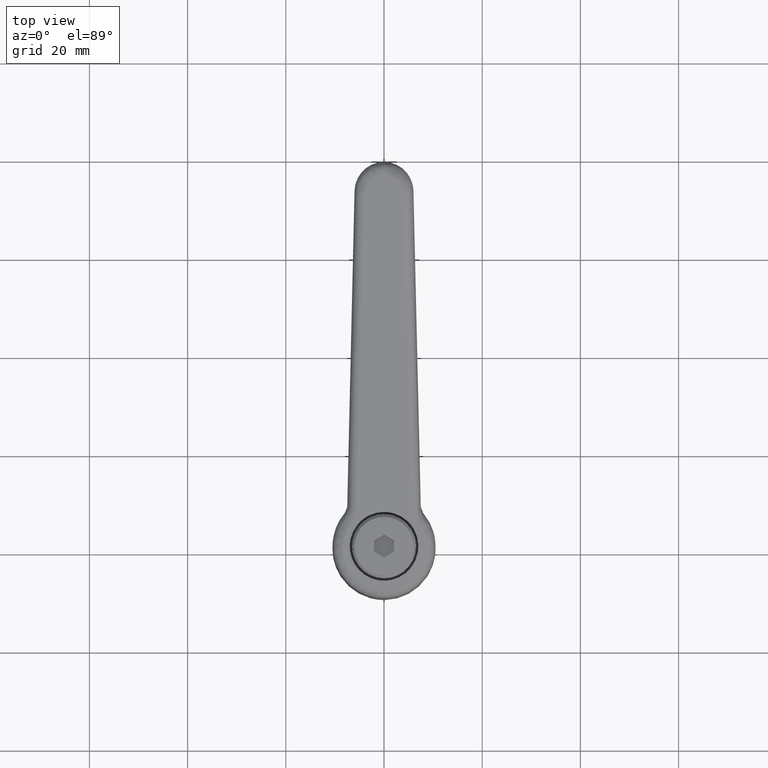
[diagram: clean part render]
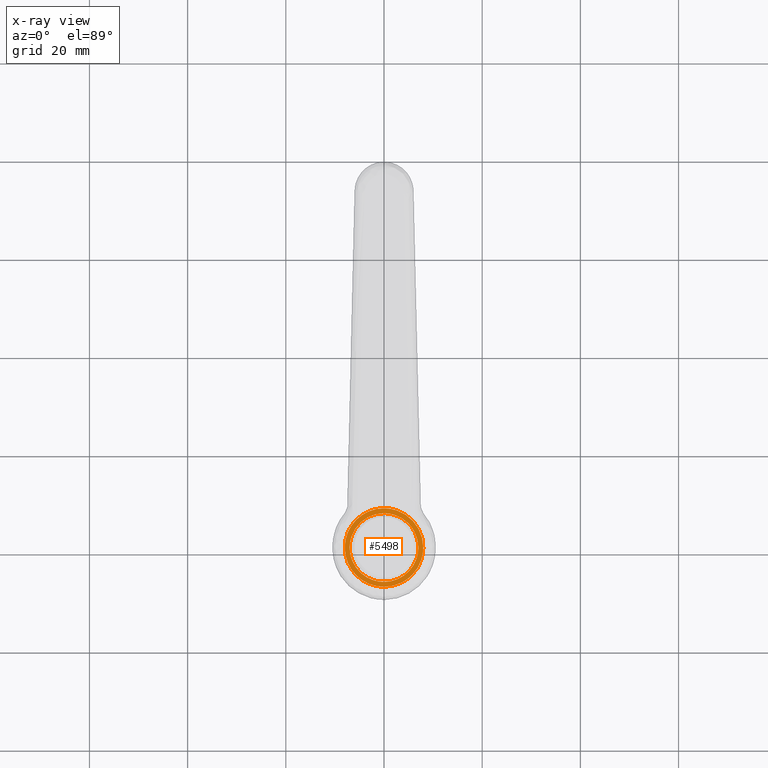
[diagram: x-ray — body ghosted, one internal face saturated and labeled with its STEP entity id]
A machine part, top view, then the same camera in x-ray: the body is ghosted and one INTERNAL B-rep face — a face not visible from any outside direction — is saturated and labeled: STEP entity #5498.
In plain terms, the highlighted face is a freeform B-spline surface patch.
Its self-contained STEP definition (entity closure, byte-faithful):
#1746=CARTESIAN_POINT('',(-8.0,0.0,12.000000000000220));
#1747=VERTEX_POINT('',#1746);
#1748=CARTESIAN_POINT('',(-5.579455721552899,-5.733207539593251,11.999999999997680));
#1749=VERTEX_POINT('',#1748);
#1750=CARTESIAN_POINT('',(-8.0,0.0,12.000000000000220));
#1751=CARTESIAN_POINT('',(-8.000146582785163,-0.632548017471937,11.999999999999980));
#1752=CARTESIAN_POINT('',(-7.861075222991566,-1.797664162633474,11.999999999999369));
#1753=CARTESIAN_POINT('',(-7.340992504563000,-3.281672746168522,11.999999999998810));
#1754=CARTESIAN_POINT('',(-6.605152552039799,-4.591446488769863,11.999999999998190));
#1755=CARTESIAN_POINT('',(-5.985107553581262,-5.338550741395644,11.999999999997859));
#1756=CARTESIAN_POINT('',(-5.579455721552899,-5.733207539593251,11.999999999997680));
#1757=B_SPLINE_CURVE_WITH_KNOTS('',3,(#1750,#1751,#1752,#1753,#1754,#1755,#1756),.UNSPECIFIED.,.F.,.U.,(4,1,1,1,4),(0.000000025283748,1.897614300903676,3.495578272960236,4.694086862250728,6.391948988996881),.UNSPECIFIED.);
#1758=EDGE_CURVE('',#1747,#1749,#1757,.T.);
#1823=CARTESIAN_POINT('',(5.404721835656156,-5.898218970217174,12.000000000002540));
#1824=VERTEX_POINT('',#1823);
#1830=CARTESIAN_POINT('',(8.0,0.0,12.000000000000220));
#1831=VERTEX_POINT('',#1830);
#1832=CARTESIAN_POINT('',(5.404721835656156,-5.898218970217174,12.000000000002540));
#1833=CARTESIAN_POINT('',(5.914259990223449,-5.431632111475515,12.000000000002350));
#1834=CARTESIAN_POINT('',(6.564324492623152,-4.658463254273058,12.000000000002061));
#1835=CARTESIAN_POINT('',(7.292831385902836,-3.361125749474158,12.000000000001560));
#1836=CARTESIAN_POINT('',(7.834373657264662,-1.934288856877671,12.000000000000940));
#1837=CARTESIAN_POINT('',(8.000263067084253,-0.725433264193038,12.000000000000471));
#1838=CARTESIAN_POINT('',(8.0,0.0,12.000000000000220));
#1839=B_SPLINE_CURVE_WITH_KNOTS('',3,(#1832,#1833,#1834,#1835,#1836,#1837,#1838),.UNSPECIFIED.,.F.,.U.,(4,1,1,1,4),(0.000000024971222,2.072597991270301,3.005278881465388,4.456068841522688,6.632297714726174),.UNSPECIFIED.);
#1840=EDGE_CURVE('',#1824,#1831,#1839,.T.);
#1842=CARTESIAN_POINT('',(-0.000001290271965,7.999999999999895,12.000000000000220));
#1843=VERTEX_POINT('',#1842);
#1844=CARTESIAN_POINT('',(8.0,0.0,12.000000000000220));
#1845=CARTESIAN_POINT('',(8.000037843075400,0.523587238359594,12.000000000000220));
#1846=CARTESIAN_POINT('',(7.884045448115455,1.701701000677621,12.000000000000229));
#1847=CARTESIAN_POINT('',(7.346269233846166,3.329718888560168,12.000000000000220));
#1848=CARTESIAN_POINT('',(6.517766009167777,4.711678988182587,12.000000000000229));
#1849=CARTESIAN_POINT('',(5.567590183017757,5.799657356347963,12.000000000000240));
#1850=CARTESIAN_POINT('',(4.622931845859096,6.565241710587349,12.000000000000210));
#1851=CARTESIAN_POINT('',(3.550745592449727,7.198944095149205,12.000000000000229));
#1852=CARTESIAN_POINT('',(2.094190580616643,7.802489740251190,12.000000000000201));
#1853=CARTESIAN_POINT('',(0.818169455048406,8.000376426993331,12.000000000000240));
#1854=CARTESIAN_POINT('',(-0.000001290271965,7.999999999999895,12.000000000000220));
#1855=B_SPLINE_CURVE_WITH_KNOTS('',3,(#1844,#1845,#1846,#1847,#1848,#1849,#1850,#1851,#1852,#1853,#1854),.UNSPECIFIED.,.F.,.U.,(4,1,1,1,1,1,1,1,4),(0.000000099454200,1.570781992837578,3.534315084249995,5.105150916040920,6.381371319695554,7.854007918731267,8.737599203066006,10.112076128385050,12.566450190227441),.UNSPECIFIED.);
#1856=EDGE_CURVE('',#1831,#1843,#1855,.T.);
#1858=CARTESIAN_POINT('',(-0.000001290271965,7.999999999999895,12.000000000000220));
#1859=CARTESIAN_POINT('',(-0.523595607655961,8.000061976602162,12.000000000000240));
#1860=CARTESIAN_POINT('',(-1.538045681373348,7.900057047752440,12.000000000000220));
#1861=CARTESIAN_POINT('',(-2.892840423951234,7.498162172064908,12.000000000000179));
#1862=CARTESIAN_POINT('',(-3.954434792309299,6.979969211486767,12.000000000000281));
#1863=CARTESIAN_POINT('',(-4.884738082912433,6.366561813023948,12.000000000000179));
#1864=CARTESIAN_POINT('',(-5.923383415954221,5.459699250754769,12.000000000000220));
#1865=CARTESIAN_POINT('',(-6.921623805859407,4.147689053402234,12.000000000000210));
#1866=CARTESIAN_POINT('',(-7.556871264655649,2.737699320155647,12.000000000000210));
#1867=CARTESIAN_POINT('',(-7.916144515111994,1.374409292184698,12.000000000000311));
#1868=CARTESIAN_POINT('',(-8.000071864010836,0.523596893245085,12.0));
#1869=CARTESIAN_POINT('',(-8.0,0.0,12.000000000000220));
#1870=B_SPLINE_CURVE_WITH_KNOTS('',3,(#1858,#1859,#1860,#1861,#1862,#1863,#1864,#1865,#1866,#1867,#1868,#1869),.UNSPECIFIED.,.F.,.U.,(4,1,1,1,1,1,1,1,1,4),(0.000000099900671,1.570781811407699,3.043436456685468,4.221558565450570,5.105150325601442,6.381370582225455,8.344890176037097,10.013897524806509,10.995666139922299,12.566448735781121),.UNSPECIFIED.);
#1871=EDGE_CURVE('',#1843,#1747,#1870,.T.);
#1890=CARTESIAN_POINT('',(0.000001290271980,-7.999999999999896,12.000000000000220));
#1891=VERTEX_POINT('',#1890);
#1892=CARTESIAN_POINT('',(-5.579455721552899,-5.733207539593251,11.999999999997680));
#1893=CARTESIAN_POINT('',(-5.164688117946731,-6.137011805629463,11.999999999997859));
#1894=CARTESIAN_POINT('',(-4.476353834935010,-6.674603347378883,11.999999999998190));
#1895=CARTESIAN_POINT('',(-3.317842528219732,-7.308198608007329,11.999999999998730));
#1896=CARTESIAN_POINT('',(-1.929395789363635,-7.833776182155236,11.999999999999300));
#1897=CARTESIAN_POINT('',(-0.739678662463672,-8.000260602987195,11.999999999999920));
#1898=CARTESIAN_POINT('',(0.000001290271980,-7.999999999999896,12.000000000000220));
#1899=B_SPLINE_CURVE_WITH_KNOTS('',3,(#1892,#1893,#1894,#1895,#1896,#1897,#1898),.UNSPECIFIED.,.F.,.U.,(4,1,1,1,4),(0.000000025363757,1.736579347750728,2.604872683574575,3.955538413598126,6.174501581771820),.UNSPECIFIED.);
#1900=EDGE_CURVE('',#1749,#1891,#1899,.T.);
#1902=CARTESIAN_POINT('',(0.000001290271980,-7.999999999999896,12.000000000000220));
#1903=CARTESIAN_POINT('',(0.525420462066901,-8.000059149213005,12.000000000000449));
#1904=CARTESIAN_POINT('',(1.607144317779405,-7.893086631017816,12.000000000000920));
#1905=CARTESIAN_POINT('',(3.090901337626052,-7.431948501413700,12.000000000001551));
#1906=CARTESIAN_POINT('',(4.375646479491109,-6.742339527304180,12.000000000002141));
#1907=CARTESIAN_POINT('',(5.085723514755403,-6.190564285088033,12.000000000002389));
#1908=CARTESIAN_POINT('',(5.404721835656156,-5.898218970217174,12.000000000002540));
#1909=B_SPLINE_CURVE_WITH_KNOTS('',3,(#1902,#1903,#1904,#1905,#1906,#1907,#1908),.UNSPECIFIED.,.F.,.U.,(4,1,1,1,4),(0.000000024424404,1.576259817334767,3.245225504844389,4.636058616536312,5.934151440253358),.UNSPECIFIED.);
#1910=EDGE_CURVE('',#1891,#1824,#1909,.T.);
#1965=CARTESIAN_POINT('',(0.000001380116942,-6.999999999999864,12.000000000000220));
#1966=VERTEX_POINT('',#1965);
#1967=CARTESIAN_POINT('',(5.016557093243714,-4.882024145664497,12.000000000000220));
#1968=VERTEX_POINT('',#1967);
#1969=CARTESIAN_POINT('',(0.000001380116942,-6.999999999999864,12.000000000000220));
#1970=CARTESIAN_POINT('',(0.436942159174408,-7.000018488970079,12.000000000000240));
#1971=CARTESIAN_POINT('',(1.456510208727216,-6.904357822701694,12.000000000000190));
#1972=CARTESIAN_POINT('',(2.853447916115172,-6.453648591158274,12.000000000000300));
#1973=CARTESIAN_POINT('',(4.089921749697010,-5.728054122153410,12.000000000000130));
#1974=CARTESIAN_POINT('',(4.732155966663081,-5.174309073023589,12.000000000000250));
#1975=CARTESIAN_POINT('',(5.016557093243714,-4.882024145664497,12.000000000000220));
#1976=B_SPLINE_CURVE_WITH_KNOTS('',3,(#1969,#1970,#1971,#1972,#1973,#1974,#1975),.UNSPECIFIED.,.F.,.U.,(4,1,1,1,4),(0.000000030911149,1.310847785507628,3.058632000036528,4.369498621374136,5.592954302731960),.UNSPECIFIED.);
#1977=EDGE_CURVE('',#1966,#1968,#1976,.T.);
#1979=CARTESIAN_POINT('',(-7.0,0.0,12.000000000000220));
#1980=VERTEX_POINT('',#1979);
#1981=CARTESIAN_POINT('',(-7.0,0.0,12.000000000000220));
#1982=CARTESIAN_POINT('',(-7.000034298766605,-0.429513739602178,12.000000000000220));
#1983=CARTESIAN_POINT('',(-6.915416544242552,-1.345798473266100,12.000000000000220));
#1984=CARTESIAN_POINT('',(-6.473429929595657,-2.836373556641692,12.000000000000270));
#1985=CARTESIAN_POINT('',(-5.716829492027896,-4.134541783461619,12.000000000000099));
#1986=CARTESIAN_POINT('',(-4.823276868030495,-5.108022759458861,12.000000000000430));
#1987=CARTESIAN_POINT('',(-4.020640791035785,-5.758563762109954,11.999999999999989));
#1988=CARTESIAN_POINT('',(-3.084807747973982,-6.319494636847661,12.000000000000441));
#1989=CARTESIAN_POINT('',(-1.746578384916403,-6.845286048067271,11.999999999999989));
#1990=CARTESIAN_POINT('',(-0.658611738846886,-7.000230600501528,12.000000000000320));
#1991=CARTESIAN_POINT('',(0.000001380116942,-6.999999999999864,12.000000000000220));
#1992=B_SPLINE_CURVE_WITH_KNOTS('',3,(#1981,#1982,#1983,#1984,#1985,#1986,#1987,#1988,#1989,#1990,#1991),.UNSPECIFIED.,.F.,.U.,(4,1,1,1,1,1,1,1,4),(0.000000113158999,1.288549311023839,2.748911520260581,4.638820287907178,5.755500626476122,6.700444444975609,7.731307701417316,9.019866226246784,10.995644057992850),.UNSPECIFIED.);
#1993=EDGE_CURVE('',#1980,#1966,#1992,.T.);
#1995=CARTESIAN_POINT('',(-0.000001380116830,6.999999999999863,12.000000000000220));
#1996=VERTEX_POINT('',#1995);
#1997=CARTESIAN_POINT('',(-0.000001380116830,6.999999999999863,12.000000000000220));
#1998=CARTESIAN_POINT('',(-0.687248290226500,7.000274918463656,12.000000000000229));
#1999=CARTESIAN_POINT('',(-1.861093569170083,6.825702104503275,12.000000000000220));
#2000=CARTESIAN_POINT('',(-3.293724937954580,6.221824963053872,12.000000000000220));
#2001=CARTESIAN_POINT('',(-4.444892450622271,5.462851174014118,12.000000000000220));
#2002=CARTESIAN_POINT('',(-5.310892467305681,4.617840875362180,12.000000000000229));
#2003=CARTESIAN_POINT('',(-6.077673106983448,3.543141305533955,12.000000000000229));
#2004=CARTESIAN_POINT('',(-6.588914235447517,2.479199296225143,12.000000000000190));
#2005=CARTESIAN_POINT('',(-6.925960568280949,1.231250664201167,12.000000000000270));
#2006=CARTESIAN_POINT('',(-7.000046233215422,0.429514214602215,12.000000000000149));
#2007=CARTESIAN_POINT('',(-7.0,0.0,12.000000000000220));
#2008=B_SPLINE_CURVE_WITH_KNOTS('',3,(#1997,#1998,#1999,#2000,#2001,#2002,#2003,#2004,#2005,#2006,#2007),.UNSPECIFIED.,.F.,.U.,(4,1,1,1,1,1,1,1,4),(0.000000113638574,2.061671186324578,3.522044475009415,4.638819631990917,6.185045183438589,7.129982632237867,8.590351868809901,9.707102481904636,10.995642502269691),.UNSPECIFIED.);
#2009=EDGE_CURVE('',#1996,#1980,#2008,.T.);
#2011=CARTESIAN_POINT('',(5.160941142034389,4.729131179871097,12.000000000000229));
#2012=VERTEX_POINT('',#2011);
#2013=CARTESIAN_POINT('',(5.160941142034389,4.729131179871097,12.000000000000229));
#2014=CARTESIAN_POINT('',(4.793471579331606,5.130351059000141,12.000000000000210));
#2015=CARTESIAN_POINT('',(4.171557736406063,5.667258532703862,12.000000000000240));
#2016=CARTESIAN_POINT('',(3.105300813817673,6.302885418600550,12.000000000000220));
#2017=CARTESIAN_POINT('',(1.813351397717071,6.832000995883760,12.000000000000210));
#2018=CARTESIAN_POINT('',(0.695214505131323,7.000303119456378,12.000000000000250));
#2019=CARTESIAN_POINT('',(-0.000001380116830,6.999999999999863,12.000000000000220));
#2020=B_SPLINE_CURVE_WITH_KNOTS('',3,(#2013,#2014,#2015,#2016,#2017,#2018,#2019),.UNSPECIFIED.,.F.,.U.,(4,1,1,1,4),(0.000000031639599,1.632168172404310,2.448256113802303,3.717712592407529,5.803261627144381),.UNSPECIFIED.);
#2021=EDGE_CURVE('',#2012,#1996,#2020,.T.);
#2086=CARTESIAN_POINT('',(7.0,0.0,12.000000000000220));
#2087=VERTEX_POINT('',#2086);
#2088=CARTESIAN_POINT('',(5.016557093243714,-4.882024145664497,12.000000000000220));
#2089=CARTESIAN_POINT('',(5.527100093518242,-4.357950246348572,12.000000000000210));
#2090=CARTESIAN_POINT('',(6.282661498369964,-3.287374255796689,12.000000000000229));
#2091=CARTESIAN_POINT('',(6.883486604153909,-1.575755990482588,12.000000000000220));
#2092=CARTESIAN_POINT('',(7.000069534476721,-0.506500896793440,12.000000000000220));
#2093=CARTESIAN_POINT('',(7.0,0.0,12.000000000000220));
#2094=B_SPLINE_CURVE_WITH_KNOTS('',3,(#2088,#2089,#2090,#2091,#2092,#2093),.UNSPECIFIED.,.F.,.U.,(4,1,1,4),(0.000000030181914,2.194854874704929,3.883181350296234,5.402687930021956),.UNSPECIFIED.);
#2095=EDGE_CURVE('',#1968,#2087,#2094,.T.);
#2127=CARTESIAN_POINT('',(7.0,0.0,12.000000000000220));
#2128=CARTESIAN_POINT('',(7.000298108002045,0.703154823482204,12.000000000000210));
#2129=CARTESIAN_POINT('',(6.806876862547392,1.974049435242532,12.000000000000270));
#2130=CARTESIAN_POINT('',(6.090972775521578,3.563924419501810,12.000000000000171));
#2131=CARTESIAN_POINT('',(5.471555374322747,4.390198162938437,12.000000000000281));
#2132=CARTESIAN_POINT('',(5.160941142034389,4.729131179871097,12.000000000000229));
#2133=B_SPLINE_CURVE_WITH_KNOTS('',3,(#2127,#2128,#2129,#2130,#2131,#2132),.UNSPECIFIED.,.F.,.U.,(4,1,1,4),(0.000000028486154,2.109412385019903,3.813155538579194,5.192383401825963),.UNSPECIFIED.);
#2134=EDGE_CURVE('',#2087,#2012,#2133,.T.);
#5477=CARTESIAN_POINT('',(-8.799199968988896,8.799199968988781,12.000000000000201));
#5478=CARTESIAN_POINT('',(8.799200398142338,8.799199968988781,12.000000000000201));
#5479=CARTESIAN_POINT('',(-8.799199968988896,-8.799200398142222,12.000000000000201));
#5480=CARTESIAN_POINT('',(8.799200398142338,-8.799200398142222,12.000000000000201));
#5481=B_SPLINE_SURFACE_WITH_KNOTS('',1,1,((#5477,#5479),(#5478,#5480)),.UNSPECIFIED.,.F.,.F.,.U.,(2,2),(2,2),(0.0,17.598400367131230),(0.0,17.598400367130999),.UNSPECIFIED.);
#5482=ORIENTED_EDGE('',*,*,#1871,.F.);
#5483=ORIENTED_EDGE('',*,*,#1856,.F.);
#5484=ORIENTED_EDGE('',*,*,#1840,.F.);
#5485=ORIENTED_EDGE('',*,*,#1910,.F.);
#5486=ORIENTED_EDGE('',*,*,#1900,.F.);
#5487=ORIENTED_EDGE('',*,*,#1758,.F.);
#5488=EDGE_LOOP('',(#5482,#5483,#5484,#5485,#5486,#5487));
#5489=FACE_OUTER_BOUND('',#5488,.T.);
#5490=ORIENTED_EDGE('',*,*,#1993,.T.);
#5491=ORIENTED_EDGE('',*,*,#1977,.T.);
#5492=ORIENTED_EDGE('',*,*,#2095,.T.);
#5493=ORIENTED_EDGE('',*,*,#2134,.T.);
#5494=ORIENTED_EDGE('',*,*,#2021,.T.);
#5495=ORIENTED_EDGE('',*,*,#2009,.T.);
#5496=EDGE_LOOP('',(#5490,#5491,#5492,#5493,#5494,#5495));
#5497=FACE_BOUND('',#5496,.T.);
#5498=ADVANCED_FACE('',(#5489,#5497),#5481,.T.);